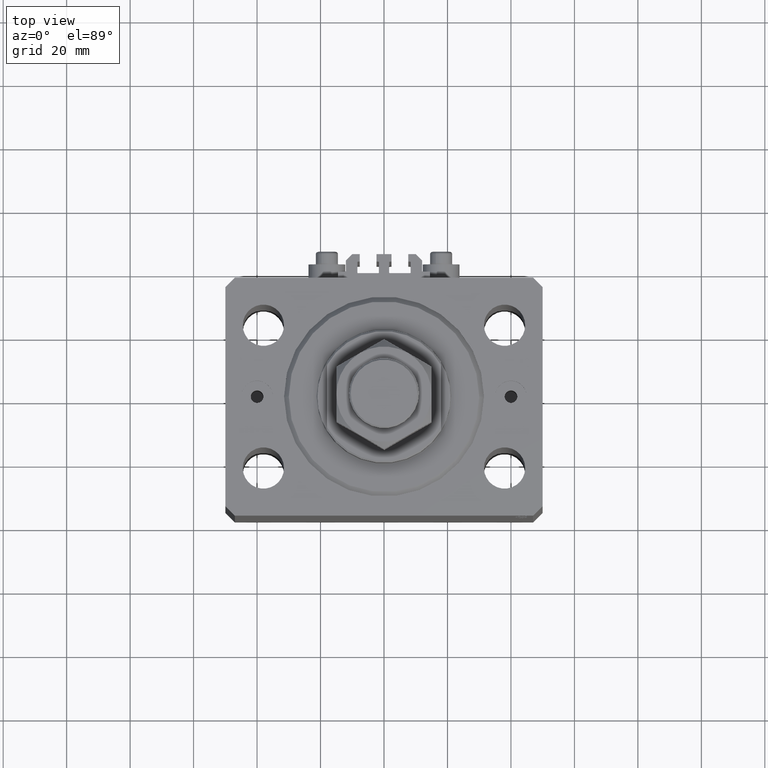
[diagram: clean part render]
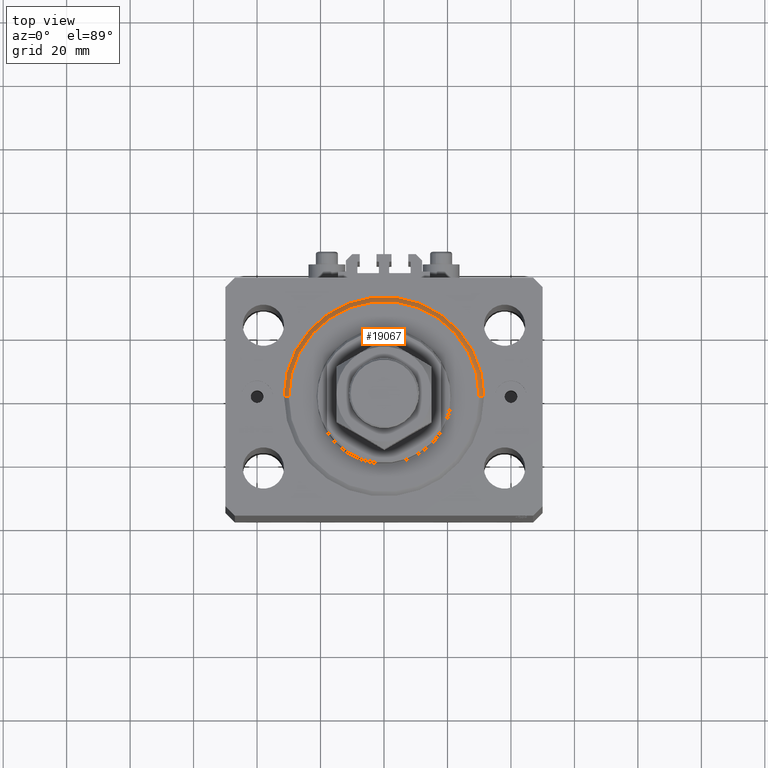
[diagram: same view with one face highlighted and labeled with its STEP entity id]
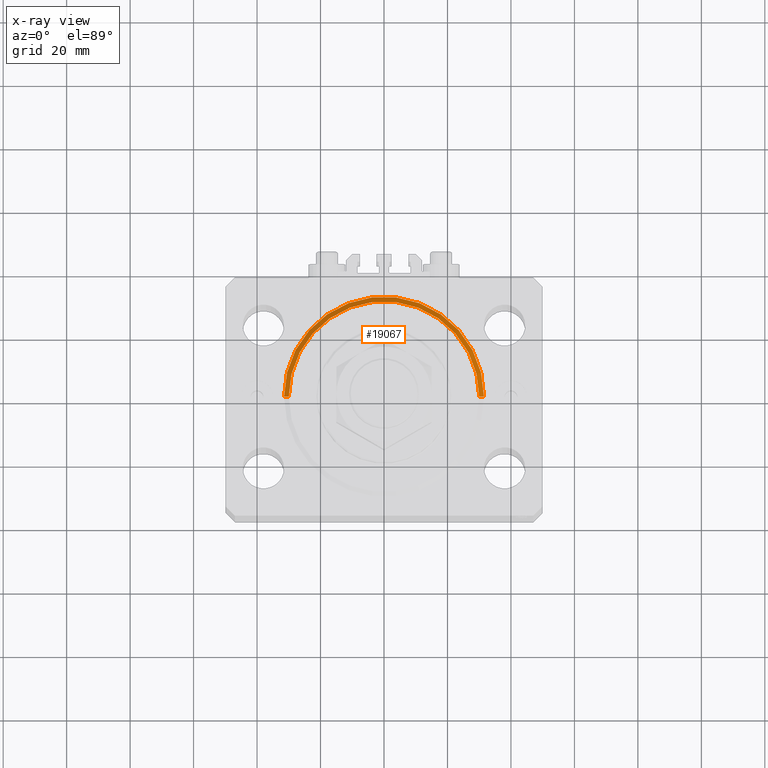
[diagram: x-ray of the same camera — body ghosted, the highlighted face saturated]
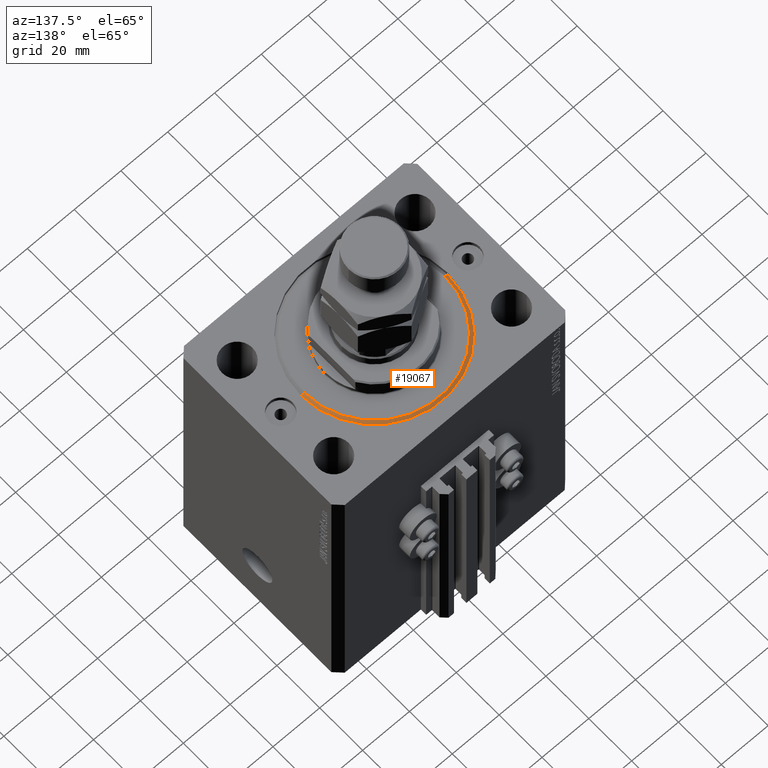
[diagram: same view with one face highlighted and labeled with its STEP entity id]
A machine part, top view. The second image highlights one B-rep face of the part: STEP entity #19067.
The next image is the same camera in x-ray: the body ghosted, the highlighted face saturated — about 0% of this face is hidden behind the body in this view.
A second angle (auxiliary view) of the same face is appended — the face is thin or edge-on in the first view.
In plain terms, the highlighted conical surface has half-angle 45 deg.
Its self-contained STEP definition (entity closure, byte-faithful):
#658 = LINE ( 'NONE', #8324, #26036 ) ;
#4611 = DIRECTION ( 'NONE',  ( 0.7071067811865474617, 0.000000000000000000, 0.7071067811865474617 ) ) ;
#5865 = DIRECTION ( 'NONE',  ( -0.000000000000000000, -0.000000000000000000, -1.000000000000000000 ) ) ;
#8324 = CARTESIAN_POINT ( 'NONE',  ( 31.50000000000000000, 0.000000000000000000, 1.499999999999980460 ) ) ;
#8918 = EDGE_CURVE ( 'NONE', #47455, #19422, #11677, .T. ) ;
#10731 = LINE ( 'NONE', #29995, #27687 ) ;
#11677 = CIRCLE ( 'NONE', #14865, 31.50000000000000000 ) ;
#13134 = CARTESIAN_POINT ( 'NONE',  ( 0.000000000000000000, 0.000000000000000000, 1.499999999999980460 ) ) ;
#13363 = EDGE_CURVE ( 'NONE', #41352, #47455, #658, .T. ) ;
#13777 = CARTESIAN_POINT ( 'NONE',  ( 0.000000000000000000, 0.000000000000000000, 0.000000000000000000 ) ) ;
#14352 = DIRECTION ( 'NONE',  ( 1.000000000000000000, 0.000000000000000000, 0.000000000000000000 ) ) ;
#14569 = CARTESIAN_POINT ( 'NONE',  ( 30.00000000000002132, 0.000000000000000000, 0.000000000000000000 ) ) ;
#14687 = EDGE_CURVE ( 'NONE', #37500, #19422, #10731, .T. ) ;
#14865 = AXIS2_PLACEMENT_3D ( 'NONE', #13134, #24990, #14352 ) ;
#19067 = ADVANCED_FACE ( 'NONE', ( #27308 ), #46111, .T. ) ;
#19422 = VERTEX_POINT ( 'NONE', #34255 ) ;
#20014 = AXIS2_PLACEMENT_3D ( 'NONE', #39211, #35732, #20391 ) ;
#20391 = DIRECTION ( 'NONE',  ( 1.000000000000000000, 0.000000000000000000, 0.000000000000000000 ) ) ;
#24990 = DIRECTION ( 'NONE',  ( -0.000000000000000000, -0.000000000000000000, 1.000000000000000000 ) ) ;
#26036 = VECTOR ( 'NONE', #4611, 1000.000000000000114 ) ;
#26536 = CARTESIAN_POINT ( 'NONE',  ( 31.50000000000000000, 3.857637417314162689E-15, 1.499999999999980460 ) ) ;
#27308 = FACE_OUTER_BOUND ( 'NONE', #43257, .T. ) ;
#27687 = VECTOR ( 'NONE', #37201, 1000.000000000000114 ) ;
#29995 = CARTESIAN_POINT ( 'NONE',  ( -31.50000000000000000, 3.857637417314162689E-15, 1.499999999999980460 ) ) ;
#30634 = ORIENTED_EDGE ( 'NONE', *, *, #14687, .T. ) ;
#31833 = DIRECTION ( 'NONE',  ( 1.000000000000000000, 0.000000000000000000, 0.000000000000000000 ) ) ;
#32547 = ORIENTED_EDGE ( 'NONE', *, *, #41655, .F. ) ;
#34255 = CARTESIAN_POINT ( 'NONE',  ( -31.50000000000000000, 0.000000000000000000, 1.499999999999980460 ) ) ;
#35033 = ORIENTED_EDGE ( 'NONE', *, *, #8918, .F. ) ;
#35732 = DIRECTION ( 'NONE',  ( -0.000000000000000000, -0.000000000000000000, 1.000000000000000000 ) ) ;
#36502 = ORIENTED_EDGE ( 'NONE', *, *, #13363, .F. ) ;
#37201 = DIRECTION ( 'NONE',  ( -0.7071067811865474617, 8.659560562354932858E-17, 0.7071067811865474617 ) ) ;
#37500 = VERTEX_POINT ( 'NONE', #43910 ) ;
#37502 = CIRCLE ( 'NONE', #37611, 30.00000000000002132 ) ;
#37611 = AXIS2_PLACEMENT_3D ( 'NONE', #13777, #5865, #31833 ) ;
#39211 = CARTESIAN_POINT ( 'NONE',  ( 0.000000000000000000, 0.000000000000000000, 1.499999999999980460 ) ) ;
#41352 = VERTEX_POINT ( 'NONE', #14569 ) ;
#41655 = EDGE_CURVE ( 'NONE', #37500, #41352, #37502, .T. ) ;
#43257 = EDGE_LOOP ( 'NONE', ( #32547, #30634, #35033, #36502 ) ) ;
#43910 = CARTESIAN_POINT ( 'NONE',  ( -30.00000000000002132, 3.765788907378112117E-15, 0.000000000000000000 ) ) ;
#46111 = CONICAL_SURFACE ( 'NONE', #20014, 31.50000000000000000, 0.7853981633974482790 ) ;
#47455 = VERTEX_POINT ( 'NONE', #26536 ) ;